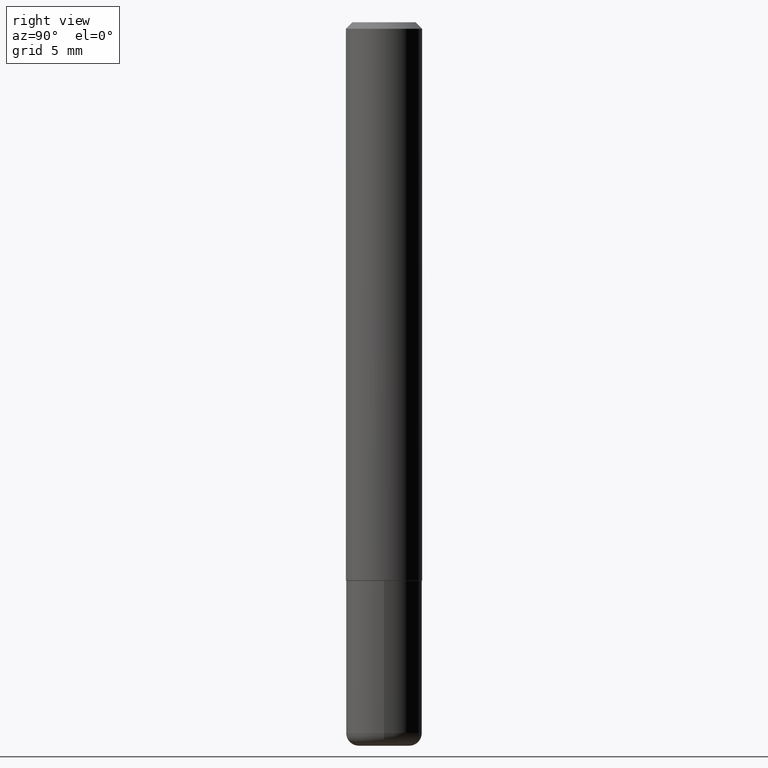
[diagram: clean part render]
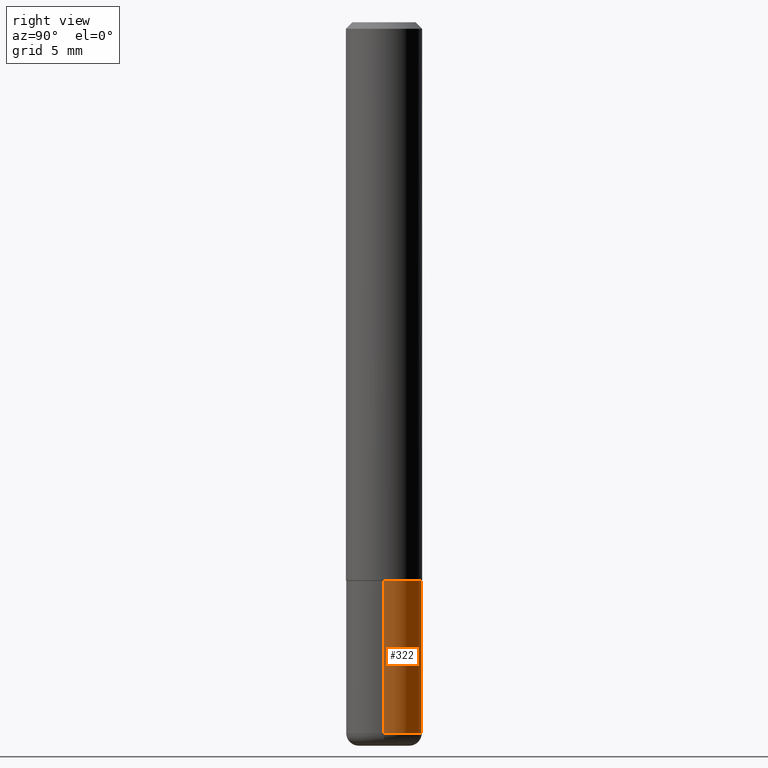
[diagram: same view with one face highlighted and labeled with its STEP entity id]
A machine part, right view. The second image highlights one B-rep face of the part: STEP entity #322.
In plain terms, the highlighted cylindrical surface (partial cylindrical patch) has radius 2.9997 mm, axis along (-0, 0, 1).
Its self-contained STEP definition (entity closure, byte-faithful):
#16 = LINE ( 'NONE', #212, #318 ) ;
#19 = DIRECTION ( 'NONE',  ( -2.445468806185136597E-29, 3.491481338843145583E-15, 1.000000000000000000 ) ) ;
#22 = CARTESIAN_POINT ( 'NONE',  ( 0.1180999999999998995, -8.522356799982231388E-15, -2.204700000000000326 ) ) ;
#54 = CARTESIAN_POINT ( 'NONE',  ( 0.1181000000000000105, -8.246878922347482626E-16, 5.758764772215001141E-30 ) ) ;
#82 = DIRECTION ( 'NONE',  ( -2.445468806185136877E-29, 3.491481338843145188E-15, 1.000000000000000000 ) ) ;
#88 = CYLINDRICAL_SURFACE ( 'NONE', #194, 0.1181000000000000105 ) ;
#94 = EDGE_CURVE ( 'NONE', #367, #288, #16, .T. ) ;
#97 = CIRCLE ( 'NONE', #309, 0.1181000000000000383 ) ;
#98 = ORIENTED_EDGE ( 'NONE', *, *, #94, .T. ) ;
#126 = VERTEX_POINT ( 'NONE', #305 ) ;
#128 = CARTESIAN_POINT ( 'NONE',  ( -0.1180999999999998995, -6.858517936814806506E-15, -2.204700000000000326 ) ) ;
#157 = CARTESIAN_POINT ( 'NONE',  ( 0.000000000000000000, 0.000000000000000000, 0.000000000000000000 ) ) ;
#161 = DIRECTION ( 'NONE',  ( -2.445468806185136597E-29, 3.491481338843145583E-15, 1.000000000000000000 ) ) ;
#181 = VECTOR ( 'NONE', #313, 39.37007874015748143 ) ;
#189 = CARTESIAN_POINT ( 'NONE',  ( 4.236285612954512392E-29, -6.048293123277981078E-15, -1.732299999999999951 ) ) ;
#194 = AXIS2_PLACEMENT_3D ( 'NONE', #157, #161, #222 ) ;
#198 = CIRCLE ( 'NONE', #289, 0.1180999999999999966 ) ;
#200 = EDGE_CURVE ( 'NONE', #295, #367, #198, .T. ) ;
#212 = CARTESIAN_POINT ( 'NONE',  ( -0.1181000000000000105, 8.391509709326783943E-16, -5.809262341591044484E-30 ) ) ;
#219 = LINE ( 'NONE', #54, #181 ) ;
#222 = DIRECTION ( 'NONE',  ( 1.000000000000000000, -6.982962677686267499E-15, 4.876176775795936353E-29 ) ) ;
#233 = ORIENTED_EDGE ( 'NONE', *, *, #200, .T. ) ;
#259 = DIRECTION ( 'NONE',  ( -2.445468806185136597E-29, 3.491481338843145583E-15, 1.000000000000000000 ) ) ;
#268 = ORIENTED_EDGE ( 'NONE', *, *, #406, .F. ) ;
#269 = ORIENTED_EDGE ( 'NONE', *, *, #302, .F. ) ;
#288 = VERTEX_POINT ( 'NONE', #381 ) ;
#289 = AXIS2_PLACEMENT_3D ( 'NONE', #317, #259, #353 ) ;
#295 = VERTEX_POINT ( 'NONE', #22 ) ;
#302 = EDGE_CURVE ( 'NONE', #126, #288, #97, .T. ) ;
#305 = CARTESIAN_POINT ( 'NONE',  ( 0.1181000000000000383, -6.872981015512729341E-15, -1.732299999999999951 ) ) ;
#309 = AXIS2_PLACEMENT_3D ( 'NONE', #189, #19, #382 ) ;
#313 = DIRECTION ( 'NONE',  ( -2.445468806185136877E-29, 3.491481338843145188E-15, 1.000000000000000000 ) ) ;
#317 = CARTESIAN_POINT ( 'NONE',  ( 5.391525076996371277E-29, -7.697668907747483125E-15, -2.204700000000000326 ) ) ;
#318 = VECTOR ( 'NONE', #82, 39.37007874015748143 ) ;
#321 = FACE_OUTER_BOUND ( 'NONE', #350, .T. ) ;
#322 = ADVANCED_FACE ( 'NONE', ( #321 ), #88, .T. ) ;
#350 = EDGE_LOOP ( 'NONE', ( #233, #98, #269, #268 ) ) ;
#353 = DIRECTION ( 'NONE',  ( 1.000000000000000000, -6.982962677686265133E-15, 0.000000000000000000 ) ) ;
#367 = VERTEX_POINT ( 'NONE', #128 ) ;
#381 = CARTESIAN_POINT ( 'NONE',  ( -0.1181000000000000522, -6.033830044580054299E-15, -1.732299999999999951 ) ) ;
#382 = DIRECTION ( 'NONE',  ( 1.000000000000000000, -6.982962677686262766E-15, 0.000000000000000000 ) ) ;
#406 = EDGE_CURVE ( 'NONE', #295, #126, #219, .T. ) ;